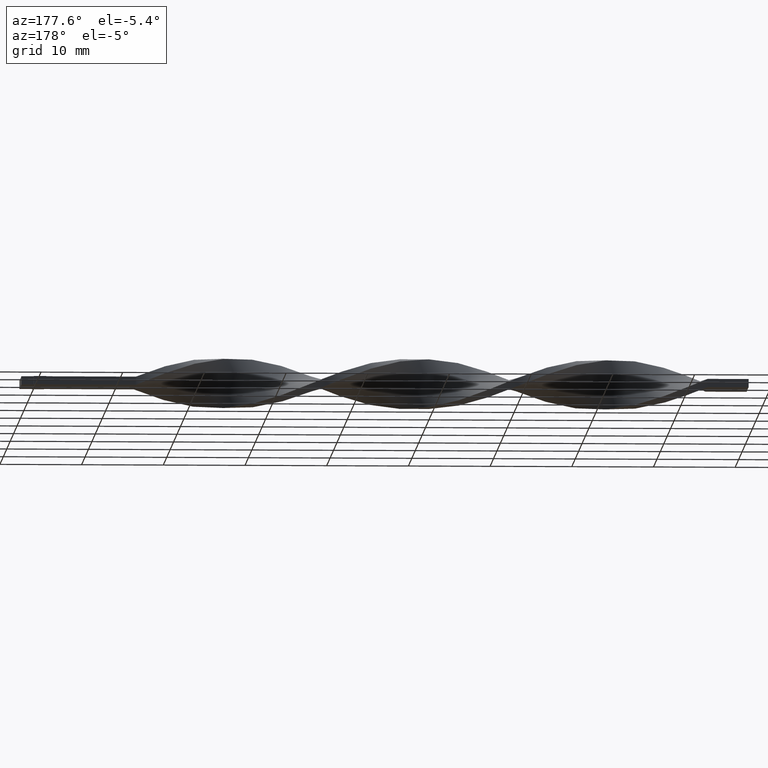
[diagram: clean part render]
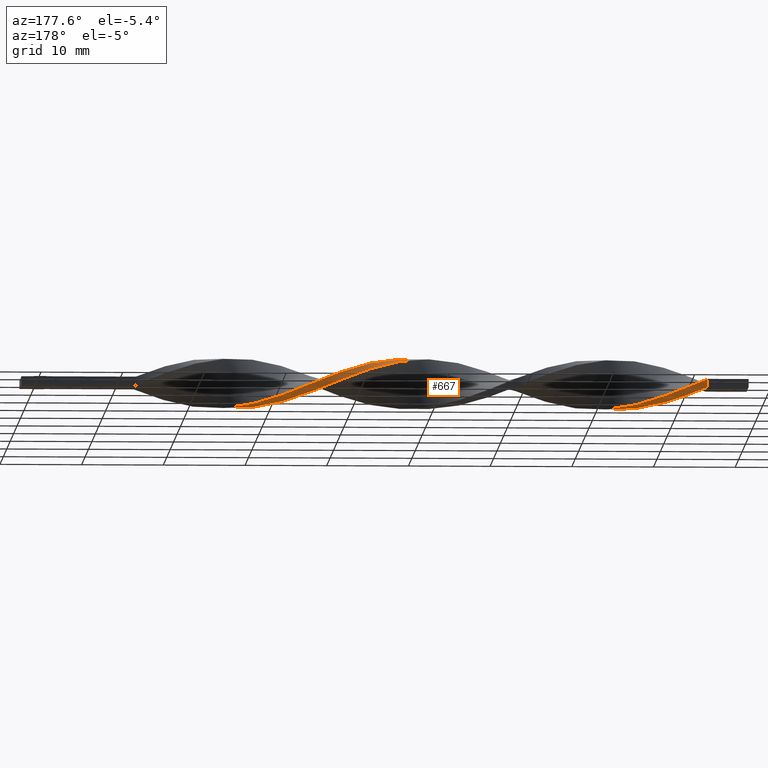
[diagram: same view with one face highlighted and labeled with its STEP entity id]
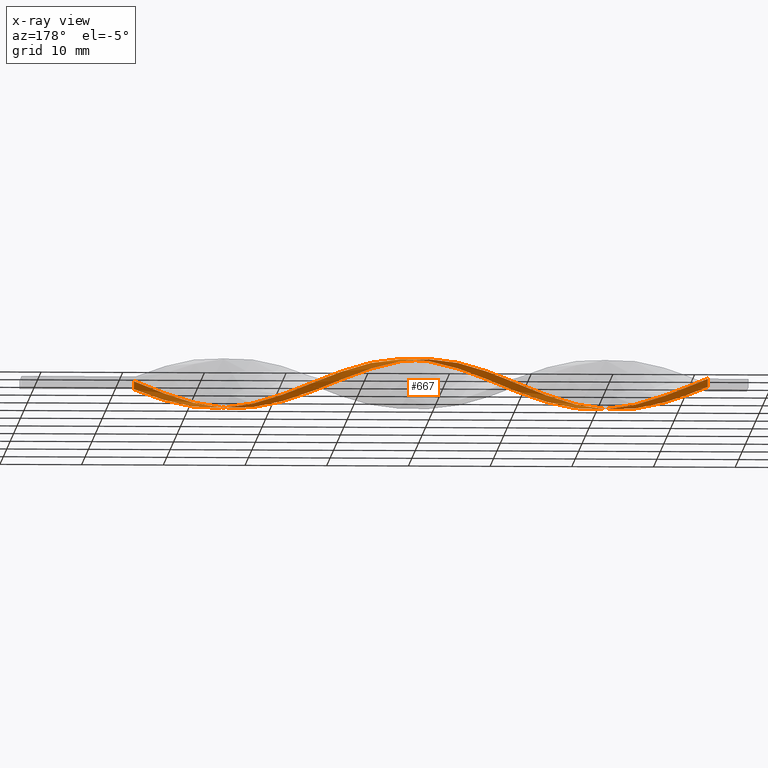
[diagram: x-ray of the same camera — body ghosted, the highlighted face saturated]
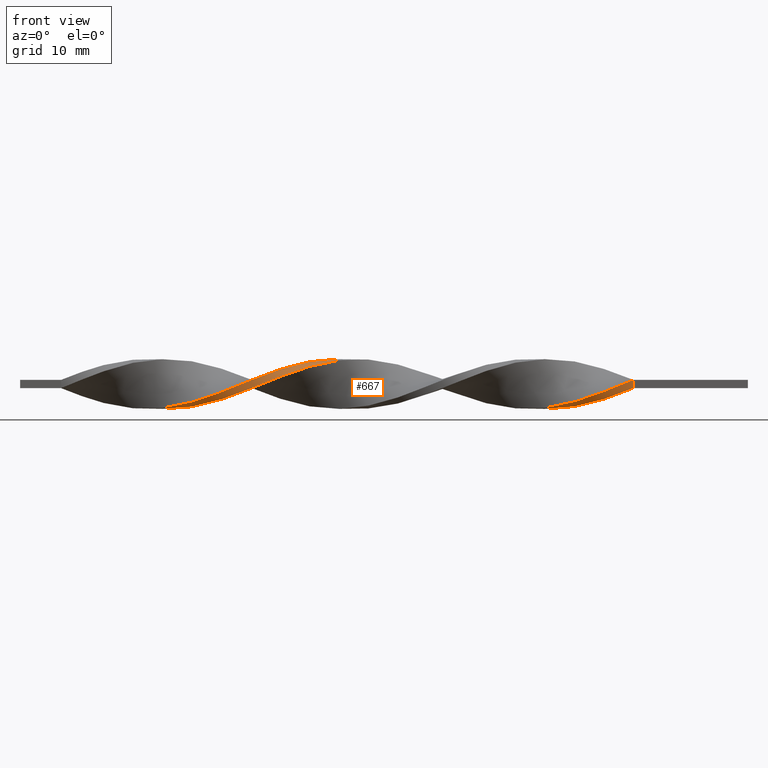
[diagram: same view with one face highlighted and labeled with its STEP entity id]
A machine part, auxiliary view. The second image highlights one B-rep face of the part: STEP entity #667.
The next image is the same camera in x-ray: the body ghosted, the highlighted face saturated — about 0% of this face is hidden behind the body in this view.
A second angle (front view) of the same face is appended — the face is thin or edge-on in the first view.
In plain terms, the highlighted face is a freeform B-spline surface patch.
Its self-contained STEP definition (entity closure, byte-faithful):
#5 = CARTESIAN_POINT ( 'NONE',  ( -68.74358974358973740, -0.9584295337030730444, -2.909946448908425243 ) ) ;
#12 = VECTOR ( 'NONE', #1029, 1000.000000000000000 ) ;
#13 = CARTESIAN_POINT ( 'NONE',  ( -61.56410256410256920, -2.939289008388868751, -0.8642659496667816077 ) ) ;
#19 = FACE_OUTER_BOUND ( 'NONE', #218, .T. ) ;
#20 = CARTESIAN_POINT ( 'NONE',  ( -66.05128205128204399, -2.577093573633700174, -1.615112600636833928 ) ) ;
#22 = CARTESIAN_POINT ( 'NONE',  ( -66.94871794871795601, -1.626975080790205030, -2.596021493184667683 ) ) ;
#27 = CARTESIAN_POINT ( 'NONE',  ( -77.71794871794872961, 2.380983398537112272, -1.928028413296781984 ) ) ;
#28 = CARTESIAN_POINT ( 'NONE',  ( -74.12820512820510999, 0.2341835458667254066, -3.054755894246597769 ) ) ;
#29 = CARTESIAN_POINT ( 'NONE',  ( -59.76923076923076650, -3.060710991611129916, -0.1357340503332168102 ) ) ;
#35 = CARTESIAN_POINT ( 'NONE',  ( -81.30769230769232081, 2.647046231879883305, -1.542569853484617504 ) ) ;
#36 = CARTESIAN_POINT ( 'NONE',  ( -76.82051282051281760, 2.115686173140294724, -2.184919224315390540 ) ) ;
#44 = EDGE_CURVE ( 'NONE', #124, #853, #194, .T. ) ;
#45 = CARTESIAN_POINT ( 'NONE',  ( -58.87179487179486870, -3.032483284421933600, 0.2324760841496498753 ) ) ;
#53 = CARTESIAN_POINT ( 'NONE',  ( -15.79487179487179205, -3.032483284421934044, -0.2324760841496470720 ) ) ;
#57 = CARTESIAN_POINT ( 'NONE',  ( -19.38461538461538325, -1.913970915392905425, -2.363623348807935454 ) ) ;
#61 = CARTESIAN_POINT ( 'NONE',  ( -68.74358974358973740, -1.850388947743477397, -2.441810035334000428 ) ) ;
#71 = CARTESIAN_POINT ( 'NONE',  ( -52.58974358974358410, -0.9584295337030710460, 2.909946448908425243 ) ) ;
#75 = ORIENTED_EDGE ( 'NONE', *, *, #163, .F. ) ;
#81 = CARTESIAN_POINT ( 'NONE',  ( -38.23076923076922640, 3.060710991611129472, -0.1357340503332191695 ) ) ;
#86 = CARTESIAN_POINT ( 'NONE',  ( -16.69230769230769340, -2.647046231879884193, -1.542569853484616615 ) ) ;
#89 = CARTESIAN_POINT ( 'NONE',  ( -33.74358974358974450, 2.424006490937744562, -1.836897528957910586 ) ) ;
#93 = CARTESIAN_POINT ( 'NONE',  ( -44.51282051282051100, 1.292702307246639037, 2.752983971046546685 ) ) ;
#97 = CARTESIAN_POINT ( 'NONE',  ( -31.94871794871794535, 1.913970915392904315, -2.363623348807935898 ) ) ;
#102 = CARTESIAN_POINT ( 'NONE',  ( -48.10256410256410220, 0.8579644778149976281, 2.917858282166499340 ) ) ;
#105 = CARTESIAN_POINT ( 'NONE',  ( -53.48717948717948900, -2.115686173140294724, 2.184919224315391428 ) ) ;
#111 = CARTESIAN_POINT ( 'NONE',  ( -24.76923076923076650, -0.8579644778149966289, -2.917858282166499340 ) ) ;
#112 = CARTESIAN_POINT ( 'NONE',  ( -45.41025641025640880, 0.9584295337030748207, 2.909946448908423910 ) ) ;
#118 = CARTESIAN_POINT ( 'NONE',  ( -22.97435897435897090, -1.531322782470314392, -2.627746284534975718 ) ) ;
#124 = VERTEX_POINT ( 'NONE', #634 ) ;
#129 = CARTESIAN_POINT ( 'NONE',  ( -19.38461538461538325, -2.577093573633700174, -1.615112600636833928 ) ) ;
#131 = CARTESIAN_POINT ( 'NONE',  ( -66.05128205128204399, -1.913970915392905425, -2.363623348807935454 ) ) ;
#143 = CARTESIAN_POINT ( 'NONE',  ( -41.82051282051281760, 2.200966749995605820, 2.131225204431203224 ) ) ;
#145 = CARTESIAN_POINT ( 'NONE',  ( -68.74358974358973740, -1.850388947743477619, -2.441810035334000428 ) ) ;
#151 = CARTESIAN_POINT ( 'NONE',  ( -58.87179487179486870, -2.793167620134375362, 1.203417901575701610 ) ) ;
#157 = CARTESIAN_POINT ( 'NONE',  ( -76.82051282051281760, 2.115686173140294724, -2.184919224315390540 ) ) ;
#159 = CARTESIAN_POINT ( 'NONE',  ( -75.02564102564102200, 1.531322782470313726, -2.627746284534976162 ) ) ;
#163 = EDGE_CURVE ( 'NONE', #124, #936, #1147, .T. ) ;
#166 = CARTESIAN_POINT ( 'NONE',  ( -64.25641025641024839, -2.424006490937744562, -1.836897528957910142 ) ) ;
#173 = CARTESIAN_POINT ( 'NONE',  ( -20.28205128205128460, -2.380983398537113160, -1.928028413296780874 ) ) ;
#179 = CARTESIAN_POINT ( 'NONE',  ( -84.00000000000000000, 2.999999999999999112, 0.4999999999999996669 ) ) ;
#194 =( BOUNDED_CURVE ( )  B_SPLINE_CURVE ( 2, ( #620, #1085, #1237, #1346, #747, #1617, #129, #497, #1365, #1491, #118, #370, #111, #1498, #365, #492, #1586, #1218, #1371, #467, #474, #993, #1119, #244, #872, #1376, #962, #359, #1474, #226, #341, #841, #860, #603, #216, #1100, #234, #711, #102, #597, #734, #1111, #1093, #970, #1483, #349, #851, #723, #1410, #509, #151, #902, #274, #391, #1508, #1000, #762, #523, #20, #880, #1127, #145, #258, #1006, #1384, #375, #909, #28, #1393, #1401, #778, #753, #530, #1279, #771, #35, #503, #265, #1258 ),
 .UNSPECIFIED., .F., .T. ) 
 B_SPLINE_CURVE_WITH_KNOTS ( ( 3, 2, 2, 2, 2, 2, 2, 2, 2, 2, 2, 2, 2, 2, 2, 2, 2, 2, 2, 2, 2, 2, 2, 2, 2, 2, 2, 2, 2, 2, 2, 2, 2, 2, 2, 2, 2, 2, 2, 3 ),
 ( 0.000000000000000000, 0.01923076923076923184, 0.03846153846153846367, 0.05769230769230768857, 0.07692307692307692735, 0.09615384615384615918, 0.1153846153846153771, 0.1346153846153846090, 0.1538461538461538547, 0.1730769230769230449, 0.1923076923076923184, 0.2115384615384615363, 0.2307692307692307543, 0.2500000000000000000, 0.2692307692307692180, 0.2884615384615384359, 0.3076923076923077094, 0.3269230769230769273, 0.3461538461538460898, 0.3653846153846153633, 0.3846153846153846367, 0.4038461538461539102, 0.4230769230769230727, 0.4423076923076922906, 0.4615384615384615086, 0.4807692307692307820, 0.5000000000000000000, 0.5192307692307692735, 0.5384615384615384359, 0.5576923076923077094, 0.5769230769230768718, 0.5961538461538461453, 0.6153846153846154188, 0.6346153846153845812, 0.6538461538461538547, 0.6730769230769230171, 0.6923076923076921796, 0.7115384615384615641, 0.7307692307692307265, 0.7500000000000000000 ),
 .UNSPECIFIED. ) 
 CURVE ( )  GEOMETRIC_REPRESENTATION_ITEM ( )  RATIONAL_B_SPLINE_CURVE ( ( 1.000000000000000000, 0.9927088740980539727, 1.000000000000000000, 0.9927088740980539727, 1.000000000000000000, 0.9927088740980539727, 1.000000000000000000, 0.9927088740980539727, 1.000000000000000000, 0.9927088740980539727, 1.000000000000000000, 0.9927088740980539727, 1.000000000000000000, 0.9927088740980539727, 1.000000000000000000, 0.9927088740980539727, 1.000000000000000000, 0.9927088740980539727, 1.000000000000000000, 0.9927088740980539727, 1.000000000000000000, 0.9927088740980539727, 1.000000000000000000, 0.9927088740980539727, 1.000000000000000000, 0.9927088740980539727, 1.000000000000000000, 0.9927088740980539727, 1.000000000000000000, 0.9927088740980539727, 1.000000000000000000, 0.9927088740980539727, 1.000000000000000000, 0.9927088740980539727, 1.000000000000000000, 0.9927088740980539727, 1.000000000000000000, 0.9927088740980539727, 1.000000000000000000, 0.9927088740980539727, 1.000000000000000000, 0.9927088740980539727, 1.000000000000000000, 0.9927088740980539727, 1.000000000000000000, 0.9927088740980539727, 1.000000000000000000, 0.9927088740980539727, 1.000000000000000000, 0.9927088740980539727, 1.000000000000000000, 0.9927088740980539727, 1.000000000000000000, 0.9927088740980539727, 1.000000000000000000, 0.9927088740980539727, 1.000000000000000000, 0.9927088740980539727, 1.000000000000000000, 0.9927088740980539727, 1.000000000000000000, 0.9927088740980539727, 1.000000000000000000, 0.9927088740980539727, 1.000000000000000000, 0.9927088740980539727, 1.000000000000000000, 0.9927088740980539727, 1.000000000000000000, 0.9927088740980539727, 1.000000000000000000, 0.9927088740980539727, 1.000000000000000000, 0.9927088740980539727, 1.000000000000000000, 0.9927088740980539727, 1.000000000000000000, 0.9927088740980539727, 1.000000000000000000 ) ) 
 REPRESENTATION_ITEM ( '' )  );
#198 = CARTESIAN_POINT ( 'NONE',  ( -78.61538461538461320, 1.913970915392904315, -2.363623348807935898 ) ) ;
#205 = CARTESIAN_POINT ( 'NONE',  ( -70.53846153846153300, -1.212256617197150943, -2.813682533735952340 ) ) ;
#208 = CARTESIAN_POINT ( 'NONE',  ( -38.23076923076922640, 2.939289008388868751, 0.8642659496667810526 ) ) ;
#209 = CARTESIAN_POINT ( 'NONE',  ( -29.25641025641025905, 1.850388947743477397, -2.441810035334000428 ) ) ;
#214 = CARTESIAN_POINT ( 'NONE',  ( -71.43589743589743080, -0.8579644778149966289, -2.917858282166499340 ) ) ;
#216 = CARTESIAN_POINT ( 'NONE',  ( -44.51282051282051100, 2.115686173140295168, 2.184919224315390540 ) ) ;
#217 = CARTESIAN_POINT ( 'NONE',  ( -84.00000000000000000, 2.999999999999999112, -0.5000000000000003331 ) ) ;
#218 = EDGE_LOOP ( 'NONE', ( #75, #786, #1016, #1024 ) ) ;
#222 = CARTESIAN_POINT ( 'NONE',  ( -63.35897435897435770, -3.004255577232739061, -0.6006862186325124808 ) ) ;
#226 = CARTESIAN_POINT ( 'NONE',  ( -40.02564102564102200, 3.004255577232739505, 0.6006862186325113706 ) ) ;
#227 = CARTESIAN_POINT ( 'NONE',  ( -29.25641025641025905, 1.850388947743477175, -2.441810035334000428 ) ) ;
#228 = CARTESIAN_POINT ( 'NONE',  ( -42.71794871794872250, 1.913970915392905869, 2.363623348807935454 ) ) ;
#234 = CARTESIAN_POINT ( 'NONE',  ( -46.30769230769230660, 1.531322782470314836, 2.627746284534975718 ) ) ;
#235 = CARTESIAN_POINT ( 'NONE',  ( -46.30769230769230660, 0.5963065397849001137, 2.982351171577511284 ) ) ;
#244 = CARTESIAN_POINT ( 'NONE',  ( -34.64102564102564230, 2.647046231879883305, -1.542569853484617504 ) ) ;
#257 = CARTESIAN_POINT ( 'NONE',  ( -48.10256410256410220, -0.1347443962830564002, 3.038394962421822942 ) ) ;
#258 = CARTESIAN_POINT ( 'NONE',  ( -69.64102564102564941, -1.531322782470314392, -2.627746284534975718 ) ) ;
#264 = CARTESIAN_POINT ( 'NONE',  ( -17.58974358974358765, -2.888729662981512902, -0.9514415033047003423 ) ) ;
#265 = CARTESIAN_POINT ( 'NONE',  ( -83.10256410256410220, 2.939289008388868751, -0.8642659496667828289 ) ) ;
#273 = CARTESIAN_POINT ( 'NONE',  ( -30.15384615384615330, 1.292702307246638371, -2.752983971046546685 ) ) ;
#274 = CARTESIAN_POINT ( 'NONE',  ( -60.66666666666666430, -2.999999999999999112, 0.5000000000000000000 ) ) ;
#276 = CARTESIAN_POINT ( 'NONE',  ( -72.33333333333332860, 0.5036723384328412045, -3.022034030597047671 ) ) ;
#282 = CARTESIAN_POINT ( 'NONE',  ( -69.64102564102564941, -0.5963065397848997806, -2.982351171577511284 ) ) ;
#291 = CARTESIAN_POINT ( 'NONE',  ( -26.56410256410256210, -0.1347443962830584541, -3.038394962421822498 ) ) ;
#302 = CARTESIAN_POINT ( 'NONE',  ( -54.38461538461538680, -2.380983398537111384, 1.928028413296783095 ) ) ;
#307 = CARTESIAN_POINT ( 'NONE',  ( -33.74358974358974450, 2.888729662981512902, -0.9514415033047007864 ) ) ;
#308 =( BOUNDED_SURFACE ( )  B_SPLINE_SURFACE ( 1, 2, ( 
 ( #867, #612, #484, #1392, #835, #605, #1087, #493, #1357, #1348, #981, #1476, #713, #1587, #468, #989, #1094, #227, #1366, #1221, #725, #1231, #1613, #342, #1467, #1337, #475, #208, #843, #705, #1112, #143, #1211, #1484, #93, #112, #235, #335, #257, #590, #1263, #761, #640, #1172, #795, #302, #1046, #901, #546, #1400, #45, #769, #410, #803, #1295, #908, #166, #1180, #1417, #918, #1268, #1547, #282, #537, #646, #1408, #419, #1146, #427, #1278, #157, #27, #1155, #784, #1539, #1303, #926, #1035, #179 ),
 ( #1436, #522, #53, #1165, #264, #668, #651, #173, #513, #1286, #1021, #893, #1014, #1426, #291, #390, #1524, #399, #273, #777, #97, #934, #89, #312, #576, #345, #839, #81, #1332, #719, #1074, #465, #812, #595, #1573, #1082, #1313, #446, #1583, #1190, #1591, #821, #1322, #71, #692, #453, #957, #1480, #1090, #1471, #847, #471, #1343, #968, #1462, #222, #322, #1352, #338, #331, #1200, #61, #831, #205, #214, #567, #709, #702, #558, #1215, #1056, #1556, #198, #437, #1444, #1066, #1566, #941, #1451 ) ),
 .UNSPECIFIED., .F., .F., .F. ) 
 B_SPLINE_SURFACE_WITH_KNOTS ( ( 2, 2 ),
 ( 3, 2, 2, 2, 2, 2, 2, 2, 2, 2, 2, 2, 2, 2, 2, 2, 2, 2, 2, 2, 2, 2, 2, 2, 2, 2, 2, 2, 2, 2, 2, 2, 2, 2, 2, 2, 2, 2, 2, 3 ),
 ( 0.000000000000000000, 1.000000000000000000 ),
 ( 0.000000000000000000, 0.01923076923076923184, 0.03846153846153846367, 0.05769230769230769551, 0.07692307692307692735, 0.09615384615384615918, 0.1153846153846153910, 0.1346153846153846090, 0.1538461538461538547, 0.1730769230769230727, 0.1923076923076923184, 0.2115384615384615363, 0.2307692307692307820, 0.2500000000000000000, 0.2692307692307692180, 0.2884615384615384359, 0.3076923076923077094, 0.3269230769230769273, 0.3461538461538461453, 0.3653846153846153633, 0.3846153846153846367, 0.4038461538461538547, 0.4230769230769230727, 0.4423076923076922906, 0.4615384615384615641, 0.4807692307692307820, 0.5000000000000000000, 0.5192307692307692735, 0.5384615384615384359, 0.5576923076923077094, 0.5769230769230768718, 0.5961538461538461453, 0.6153846153846154188, 0.6346153846153845812, 0.6538461538461538547, 0.6730769230769231282, 0.6923076923076922906, 0.7115384615384615641, 0.7307692307692307265, 0.7500000000000000000 ),
 .UNSPECIFIED. ) 
 GEOMETRIC_REPRESENTATION_ITEM ( )  RATIONAL_B_SPLINE_SURFACE ( (
 ( 1.000000000000000000, 0.9927088740980539727, 1.000000000000000000, 0.9927088740980539727, 1.000000000000000000, 0.9927088740980539727, 1.000000000000000000, 0.9927088740980539727, 1.000000000000000000, 0.9927088740980539727, 1.000000000000000000, 0.9927088740980539727, 1.000000000000000000, 0.9927088740980539727, 1.000000000000000000, 0.9927088740980539727, 1.000000000000000000, 0.9927088740980539727, 1.000000000000000000, 0.9927088740980539727, 1.000000000000000000, 0.9927088740980539727, 1.000000000000000000, 0.9927088740980539727, 1.000000000000000000, 0.9927088740980539727, 1.000000000000000000, 0.9927088740980539727, 1.000000000000000000, 0.9927088740980539727, 1.000000000000000000, 0.9927088740980539727, 1.000000000000000000, 0.9927088740980539727, 1.000000000000000000, 0.9927088740980539727, 1.000000000000000000, 0.9927088740980539727, 1.000000000000000000, 0.9927088740980539727, 1.000000000000000000, 0.9927088740980539727, 1.000000000000000000, 0.9927088740980539727, 1.000000000000000000, 0.9927088740980539727, 1.000000000000000000, 0.9927088740980539727, 1.000000000000000000, 0.9927088740980539727, 1.000000000000000000, 0.9927088740980539727, 1.000000000000000000, 0.9927088740980539727, 1.000000000000000000, 0.9927088740980539727, 1.000000000000000000, 0.9927088740980539727, 1.000000000000000000, 0.9927088740980539727, 1.000000000000000000, 0.9927088740980539727, 1.000000000000000000, 0.9927088740980539727, 1.000000000000000000, 0.9927088740980539727, 1.000000000000000000, 0.9927088740980539727, 1.000000000000000000, 0.9927088740980539727, 1.000000000000000000, 0.9927088740980539727, 1.000000000000000000, 0.9927088740980539727, 1.000000000000000000, 0.9927088740980539727, 1.000000000000000000, 0.9927088740980539727, 1.000000000000000000),
 ( 1.000000000000000000, 0.9927088740980539727, 1.000000000000000000, 0.9927088740980539727, 1.000000000000000000, 0.9927088740980539727, 1.000000000000000000, 0.9927088740980539727, 1.000000000000000000, 0.9927088740980539727, 1.000000000000000000, 0.9927088740980539727, 1.000000000000000000, 0.9927088740980539727, 1.000000000000000000, 0.9927088740980539727, 1.000000000000000000, 0.9927088740980539727, 1.000000000000000000, 0.9927088740980539727, 1.000000000000000000, 0.9927088740980539727, 1.000000000000000000, 0.9927088740980539727, 1.000000000000000000, 0.9927088740980539727, 1.000000000000000000, 0.9927088740980539727, 1.000000000000000000, 0.9927088740980539727, 1.000000000000000000, 0.9927088740980539727, 1.000000000000000000, 0.9927088740980539727, 1.000000000000000000, 0.9927088740980539727, 1.000000000000000000, 0.9927088740980539727, 1.000000000000000000, 0.9927088740980539727, 1.000000000000000000, 0.9927088740980539727, 1.000000000000000000, 0.9927088740980539727, 1.000000000000000000, 0.9927088740980539727, 1.000000000000000000, 0.9927088740980539727, 1.000000000000000000, 0.9927088740980539727, 1.000000000000000000, 0.9927088740980539727, 1.000000000000000000, 0.9927088740980539727, 1.000000000000000000, 0.9927088740980539727, 1.000000000000000000, 0.9927088740980539727, 1.000000000000000000, 0.9927088740980539727, 1.000000000000000000, 0.9927088740980539727, 1.000000000000000000, 0.9927088740980539727, 1.000000000000000000, 0.9927088740980539727, 1.000000000000000000, 0.9927088740980539727, 1.000000000000000000, 0.9927088740980539727, 1.000000000000000000, 0.9927088740980539727, 1.000000000000000000, 0.9927088740980539727, 1.000000000000000000, 0.9927088740980539727, 1.000000000000000000, 0.9927088740980539727, 1.000000000000000000) ) ) 
 REPRESENTATION_ITEM ( '' )  SURFACE ( )  );
#312 = CARTESIAN_POINT ( 'NONE',  ( -34.64102564102564230, 2.647046231879883305, -1.542569853484617726 ) ) ;
#317 = CARTESIAN_POINT ( 'NONE',  ( -17.58974358974358765, -2.424006490937744562, -1.836897528957910142 ) ) ;
#322 = CARTESIAN_POINT ( 'NONE',  ( -64.25641025641024839, -2.888729662981512902, -0.9514415033047003423 ) ) ;
#331 = CARTESIAN_POINT ( 'NONE',  ( -66.94871794871794179, -2.380983398537113160, -1.928028413296780874 ) ) ;
#335 = CARTESIAN_POINT ( 'NONE',  ( -47.20512820512820440, 0.2341835458667255176, 3.054755894246597769 ) ) ;
#338 = CARTESIAN_POINT ( 'NONE',  ( -66.05128205128204399, -2.577093573633700174, -1.615112600636833928 ) ) ;
#341 = CARTESIAN_POINT ( 'NONE',  ( -40.92307692307691980, 2.888729662981512902, 0.9514415033047001202 ) ) ;
#342 = CARTESIAN_POINT ( 'NONE',  ( -34.64102564102564230, 3.004255577232739061, -0.6006862186325132580 ) ) ;
#345 = CARTESIAN_POINT ( 'NONE',  ( -36.43589743589743790, 2.939289008388868751, -0.8642659496667827179 ) ) ;
#349 = CARTESIAN_POINT ( 'NONE',  ( -54.38461538461538680, -1.626975080790202366, 2.596021493184669016 ) ) ;
#350 = CARTESIAN_POINT ( 'NONE',  ( -84.00000000000000000, 2.999999999999999112, 0.1666666666666663521 ) ) ;
#359 = CARTESIAN_POINT ( 'NONE',  ( -38.23076923076922640, 3.060710991611129472, -0.1357340503332191972 ) ) ;
#365 = CARTESIAN_POINT ( 'NONE',  ( -26.56410256410256210, -0.1347443962830584541, -3.038394962421822498 ) ) ;
#370 = CARTESIAN_POINT ( 'NONE',  ( -23.87179487179487580, -1.212256617197150943, -2.813682533735952340 ) ) ;
#375 = CARTESIAN_POINT ( 'NONE',  ( -72.33333333333332860, -0.5036723384328416486, -3.022034030597047671 ) ) ;
#376 = CARTESIAN_POINT ( 'NONE',  ( -79.51282051282051100, 2.773203748730287632, -1.302196787976888093 ) ) ;
#390 = CARTESIAN_POINT ( 'NONE',  ( -27.46153846153846345, 0.2341835458667254066, -3.054755894246597769 ) ) ;
#391 = CARTESIAN_POINT ( 'NONE',  ( -61.56410256410256920, -3.060710991611129472, 0.1357340503332185033 ) ) ;
#399 = CARTESIAN_POINT ( 'NONE',  ( -29.25641025641025905, 0.9584295337030727113, -2.909946448908424799 ) ) ;
#404 = CARTESIAN_POINT ( 'NONE',  ( -82.20512820512820440, 3.032483284421934044, -0.2324760841496482100 ) ) ;
#410 = CARTESIAN_POINT ( 'NONE',  ( -60.66666666666666430, -2.999999999999999112, -0.5000000000000000000 ) ) ;
#413 = CARTESIAN_POINT ( 'NONE',  ( -65.15384615384614619, -2.200966749995605376, -2.131225204431203224 ) ) ;
#419 = CARTESIAN_POINT ( 'NONE',  ( -73.23076923076924061, 0.8579644778149956297, -2.917858282166499784 ) ) ;
#427 = CARTESIAN_POINT ( 'NONE',  ( -75.02564102564102200, 1.531322782470313726, -2.627746284534976162 ) ) ;
#432 = CARTESIAN_POINT ( 'NONE',  ( -13.99999999999999822, -2.999999999999999112, -0.5000000000000000000 ) ) ;
#437 = CARTESIAN_POINT ( 'NONE',  ( -79.51282051282051100, 2.200966749995605376, -2.131225204431203668 ) ) ;
#443 = CARTESIAN_POINT ( 'NONE',  ( -31.94871794871794535, 2.577093573633699730, -1.615112600636835261 ) ) ;
#446 = CARTESIAN_POINT ( 'NONE',  ( -47.20512820512820440, 1.212256617197150721, 2.813682533735952340 ) ) ;
#453 = CARTESIAN_POINT ( 'NONE',  ( -54.38461538461538680, -1.626975080790202366, 2.596021493184669016 ) ) ;
#459 = CARTESIAN_POINT ( 'NONE',  ( -27.46153846153846345, 1.212256617197150721, -2.813682533735952340 ) ) ;
#465 = CARTESIAN_POINT ( 'NONE',  ( -41.82051282051281760, 2.773203748730288076, 1.302196787976887205 ) ) ;
#467 = CARTESIAN_POINT ( 'NONE',  ( -31.05128205128205465, 1.626975080790203920, -2.596021493184668572 ) ) ;
#468 = CARTESIAN_POINT ( 'NONE',  ( -26.56410256410256210, 0.8579644778149956297, -2.917858282166499784 ) ) ;
#471 = CARTESIAN_POINT ( 'NONE',  ( -59.76923076923077360, -2.939289008388868307, 0.8642659496667831620 ) ) ;
#474 = CARTESIAN_POINT ( 'NONE',  ( -31.94871794871794535, 1.913970915392904315, -2.363623348807935898 ) ) ;
#475 = CARTESIAN_POINT ( 'NONE',  ( -37.33333333333332860, 2.999999999999999112, 0.4999999999999996669 ) ) ;
#484 = CARTESIAN_POINT ( 'NONE',  ( -15.79487179487179205, -2.793167620134376694, -1.203417901575699167 ) ) ;
#492 = CARTESIAN_POINT ( 'NONE',  ( -27.46153846153846345, 0.2341835458667254066, -3.054755894246597769 ) ) ;
#493 = CARTESIAN_POINT ( 'NONE',  ( -20.28205128205128460, -1.626975080790204808, -2.596021493184667683 ) ) ;
#497 = CARTESIAN_POINT ( 'NONE',  ( -20.28205128205128460, -2.380983398537113160, -1.928028413296780874 ) ) ;
#498 = CARTESIAN_POINT ( 'NONE',  ( -40.92307692307691980, 2.424006490937744562, 1.836897528957909920 ) ) ;
#503 = CARTESIAN_POINT ( 'NONE',  ( -82.20512820512820440, 2.793167620134375806, -1.203417901575700055 ) ) ;
#505 = CARTESIAN_POINT ( 'NONE',  ( -77.71794871794874382, 2.380983398537112272, -1.928028413296781984 ) ) ;
#509 = CARTESIAN_POINT ( 'NONE',  ( -57.97435897435897090, -2.647046231879883305, 1.542569853484617948 ) ) ;
#511 = CARTESIAN_POINT ( 'NONE',  ( -13.99999999999999822, -2.999999999999999112, -0.5000000000000000000 ) ) ;
#513 = CARTESIAN_POINT ( 'NONE',  ( -21.17948717948717885, -2.115686173140295168, -2.184919224315390540 ) ) ;
#515 = CARTESIAN_POINT ( 'NONE',  ( -80.41025641025640880, 2.888729662981512902, -0.9514415033047007864 ) ) ;
#522 = CARTESIAN_POINT ( 'NONE',  ( -14.89743589743589602, -3.060710991611129472, 0.1357340503332185311 ) ) ;
#523 = CARTESIAN_POINT ( 'NONE',  ( -65.15384615384614619, -2.773203748730287632, -1.302196787976887871 ) ) ;
#530 = CARTESIAN_POINT ( 'NONE',  ( -78.61538461538461320, 1.913970915392904315, -2.363623348807935898 ) ) ;
#537 = CARTESIAN_POINT ( 'NONE',  ( -70.53846153846153300, -0.2341835458667257397, -3.054755894246597769 ) ) ;
#543 = CARTESIAN_POINT ( 'NONE',  ( -39.12820512820512420, 2.793167620134376694, 1.203417901575698279 ) ) ;
#546 = CARTESIAN_POINT ( 'NONE',  ( -57.07692307692307310, -2.888729662981512458, 0.9514415033047024517 ) ) ;
#554 = CARTESIAN_POINT ( 'NONE',  ( -22.97435897435897090, -0.5963065397848997806, -2.982351171577511284 ) ) ;
#558 = CARTESIAN_POINT ( 'NONE',  ( -75.02564102564102200, 0.5963065397848987814, -2.982351171577511728 ) ) ;
#564 = CARTESIAN_POINT ( 'NONE',  ( -20.28205128205128460, -1.626975080790205030, -2.596021493184667683 ) ) ;
#567 = CARTESIAN_POINT ( 'NONE',  ( -72.33333333333332860, -0.5036723384328416486, -3.022034030597047671 ) ) ;
#576 = CARTESIAN_POINT ( 'NONE',  ( -35.53846153846153300, 2.793167620134375806, -1.203417901575700055 ) ) ;
#581 = CARTESIAN_POINT ( 'NONE',  ( -21.17948717948717885, -1.292702307246639037, -2.752983971046546685 ) ) ;
#590 = CARTESIAN_POINT ( 'NONE',  ( -49.00000000000000711, -0.5036723384328408715, 3.022034030597047671 ) ) ;
#595 = CARTESIAN_POINT ( 'NONE',  ( -43.61538461538461320, 2.380983398537113604, 1.928028413296780430 ) ) ;
#597 = CARTESIAN_POINT ( 'NONE',  ( -49.00000000000000000, 0.5036723384328419817, 3.022034030597047671 ) ) ;
#598 = CARTESIAN_POINT ( 'NONE',  ( -84.00000000000000000, 2.999999999999999112, 0.4999999999999996669 ) ) ;
#603 = CARTESIAN_POINT ( 'NONE',  ( -43.61538461538461320, 2.380983398537114049, 1.928028413296780430 ) ) ;
#605 = CARTESIAN_POINT ( 'NONE',  ( -18.48717948717948545, -2.200966749995605376, -2.131225204431203224 ) ) ;
#612 = CARTESIAN_POINT ( 'NONE',  ( -14.89743589743589602, -2.939289008388868751, -0.8642659496667817187 ) ) ;
#620 = CARTESIAN_POINT ( 'NONE',  ( -13.99999999999999822, -2.999999999999999112, 0.5000000000000000000 ) ) ;
#624 = EDGE_CURVE ( 'NONE', #661, #853, #1227, .T. ) ;
#628 = CARTESIAN_POINT ( 'NONE',  ( -69.64102564102564941, -0.5963065397848997806, -2.982351171577511284 ) ) ;
#634 = CARTESIAN_POINT ( 'NONE',  ( -13.99999999999999822, -2.999999999999999112, 0.5000000000000000000 ) ) ;
#640 = CARTESIAN_POINT ( 'NONE',  ( -51.69230769230769340, -1.531322782470313726, 2.627746284534976162 ) ) ;
#646 = CARTESIAN_POINT ( 'NONE',  ( -71.43589743589743080, 0.1347443962830574271, -3.038394962421822942 ) ) ;
#651 = CARTESIAN_POINT ( 'NONE',  ( -19.38461538461538325, -2.577093573633700174, -1.615112600636833928 ) ) ;
#653 = CARTESIAN_POINT ( 'NONE',  ( -57.07692307692307310, -2.888729662981512458, 0.9514415033047024517 ) ) ;
#661 = VERTEX_POINT ( 'NONE', #1494 ) ;
#667 = ADVANCED_FACE ( 'NONE', ( #19 ), #308, .T. ) ;
#668 = CARTESIAN_POINT ( 'NONE',  ( -18.48717948717948545, -2.773203748730287632, -1.302196787976887649 ) ) ;
#692 = CARTESIAN_POINT ( 'NONE',  ( -53.48717948717948900, -1.292702307246637927, 2.752983971046546685 ) ) ;
#702 = CARTESIAN_POINT ( 'NONE',  ( -74.12820512820512420, 0.2341835458667254066, -3.054755894246597769 ) ) ;
#705 = CARTESIAN_POINT ( 'NONE',  ( -40.02564102564102200, 2.647046231879884637, 1.542569853484615505 ) ) ;
#706 = CARTESIAN_POINT ( 'NONE',  ( -36.43589743589743790, 3.060710991611129472, 0.1357340503332171711 ) ) ;
#709 = CARTESIAN_POINT ( 'NONE',  ( -73.23076923076924061, -0.1347443962830584541, -3.038394962421822498 ) ) ;
#711 = CARTESIAN_POINT ( 'NONE',  ( -47.20512820512820440, 1.212256617197150721, 2.813682533735952340 ) ) ;
#713 = CARTESIAN_POINT ( 'NONE',  ( -24.76923076923076650, 0.1347443962830574271, -3.038394962421822942 ) ) ;
#714 = CARTESIAN_POINT ( 'NONE',  ( -46.30769230769230660, 0.5963065397849001137, 2.982351171577511284 ) ) ;
#719 = CARTESIAN_POINT ( 'NONE',  ( -40.02564102564102200, 3.004255577232739505, 0.6006862186325113706 ) ) ;
#723 = CARTESIAN_POINT ( 'NONE',  ( -56.17948717948717530, -2.200966749995605376, 2.131225204431204112 ) ) ;
#725 = CARTESIAN_POINT ( 'NONE',  ( -31.94871794871794535, 2.577093573633699730, -1.615112600636835261 ) ) ;
#726 = CARTESIAN_POINT ( 'NONE',  ( -44.51282051282051100, 1.292702307246639037, 2.752983971046546685 ) ) ;
#734 = CARTESIAN_POINT ( 'NONE',  ( -49.89743589743589069, 0.1347443962830601472, 3.038394962421822498 ) ) ;
#747 = CARTESIAN_POINT ( 'NONE',  ( -17.58974358974358765, -2.888729662981512902, -0.9514415033047003423 ) ) ;
#753 = CARTESIAN_POINT ( 'NONE',  ( -77.71794871794874382, 1.626975080790203920, -2.596021493184668572 ) ) ;
#761 = CARTESIAN_POINT ( 'NONE',  ( -50.79487179487178850, -1.212256617197149611, 2.813682533735953228 ) ) ;
#762 = CARTESIAN_POINT ( 'NONE',  ( -64.25641025641024839, -2.888729662981512902, -0.9514415033047003423 ) ) ;
#763 = CARTESIAN_POINT ( 'NONE',  ( -70.53846153846153300, -0.2341835458667257397, -3.054755894246597769 ) ) ;
#769 = CARTESIAN_POINT ( 'NONE',  ( -59.76923076923077360, -3.060710991611129916, -0.1357340503332168102 ) ) ;
#771 = CARTESIAN_POINT ( 'NONE',  ( -80.41025641025640880, 2.424006490937744562, -1.836897528957910586 ) ) ;
#772 = CARTESIAN_POINT ( 'NONE',  ( -78.61538461538461320, 2.577093573633699730, -1.615112600636835261 ) ) ;
#777 = CARTESIAN_POINT ( 'NONE',  ( -31.05128205128205821, 1.626975080790203920, -2.596021493184668572 ) ) ;
#778 = CARTESIAN_POINT ( 'NONE',  ( -76.82051282051281760, 1.292702307246638371, -2.752983971046546685 ) ) ;
#784 = CARTESIAN_POINT ( 'NONE',  ( -79.51282051282051100, 2.773203748730287632, -1.302196787976887871 ) ) ;
#786 = ORIENTED_EDGE ( 'NONE', *, *, #44, .T. ) ;
#795 = CARTESIAN_POINT ( 'NONE',  ( -53.48717948717948900, -2.115686173140294724, 2.184919224315391428 ) ) ;
#803 = CARTESIAN_POINT ( 'NONE',  ( -61.56410256410256920, -2.939289008388868751, -0.8642659496667817187 ) ) ;
#812 = CARTESIAN_POINT ( 'NONE',  ( -42.71794871794872250, 2.577093573633700618, 1.615112600636833928 ) ) ;
#818 = CARTESIAN_POINT ( 'NONE',  ( -40.02564102564102200, 2.647046231879884637, 1.542569853484615505 ) ) ;
#821 = CARTESIAN_POINT ( 'NONE',  ( -50.79487179487178850, -0.2341835458667242409, 3.054755894246597769 ) ) ;
#828 = CARTESIAN_POINT ( 'NONE',  ( -14.89743589743589602, -2.939289008388868751, -0.8642659496667816077 ) ) ;
#831 = CARTESIAN_POINT ( 'NONE',  ( -69.64102564102564941, -1.531322782470314392, -2.627746284534975718 ) ) ;
#835 = CARTESIAN_POINT ( 'NONE',  ( -17.58974358974358765, -2.424006490937744562, -1.836897528957910142 ) ) ;
#836 = CARTESIAN_POINT ( 'NONE',  ( -34.64102564102564230, 3.004255577232739061, -0.6006862186325134800 ) ) ;
#839 = CARTESIAN_POINT ( 'NONE',  ( -37.33333333333332860, 2.999999999999999112, -0.5000000000000003331 ) ) ;
#841 = CARTESIAN_POINT ( 'NONE',  ( -41.82051282051281760, 2.773203748730288076, 1.302196787976887205 ) ) ;
#843 = CARTESIAN_POINT ( 'NONE',  ( -39.12820512820512420, 2.793167620134376694, 1.203417901575698279 ) ) ;
#847 = CARTESIAN_POINT ( 'NONE',  ( -58.87179487179486870, -2.793167620134375362, 1.203417901575701610 ) ) ;
#851 = CARTESIAN_POINT ( 'NONE',  ( -55.28205128205128460, -1.913970915392903871, 2.363623348807935898 ) ) ;
#853 = VERTEX_POINT ( 'NONE', #1254 ) ;
#860 = CARTESIAN_POINT ( 'NONE',  ( -42.71794871794872250, 2.577093573633700618, 1.615112600636833928 ) ) ;
#867 = CARTESIAN_POINT ( 'NONE',  ( -13.99999999999999822, -2.999999999999999112, -0.5000000000000000000 ) ) ;
#868 = CARTESIAN_POINT ( 'NONE',  ( -49.89743589743589069, -0.8579644778149938533, 2.917858282166499784 ) ) ;
#872 = CARTESIAN_POINT ( 'NONE',  ( -35.53846153846153300, 2.793167620134375806, -1.203417901575700055 ) ) ;
#880 = CARTESIAN_POINT ( 'NONE',  ( -66.94871794871795601, -2.380983398537113160, -1.928028413296780874 ) ) ;
#881 = CARTESIAN_POINT ( 'NONE',  ( -81.30769230769232081, 3.004255577232739061, -0.6006862186325134800 ) ) ;
#886 = CARTESIAN_POINT ( 'NONE',  ( -60.66666666666666430, -2.999999999999999112, -0.5000000000000000000 ) ) ;
#893 = CARTESIAN_POINT ( 'NONE',  ( -23.87179487179487580, -1.212256617197150943, -2.813682533735952340 ) ) ;
#895 = CARTESIAN_POINT ( 'NONE',  ( -84.00000000000000000, 2.999999999999999112, 0.4999999999999996669 ) ) ;
#901 = CARTESIAN_POINT ( 'NONE',  ( -56.17948717948717530, -2.773203748730287632, 1.302196787976888315 ) ) ;
#902 = CARTESIAN_POINT ( 'NONE',  ( -59.76923076923076650, -2.939289008388868307, 0.8642659496667832730 ) ) ;
#908 = CARTESIAN_POINT ( 'NONE',  ( -63.35897435897435770, -2.647046231879884193, -1.542569853484616615 ) ) ;
#909 = CARTESIAN_POINT ( 'NONE',  ( -73.23076923076924061, -0.1347443962830584541, -3.038394962421822498 ) ) ;
#911 = CARTESIAN_POINT ( 'NONE',  ( -62.46153846153845990, -2.793167620134376694, -1.203417901575699167 ) ) ;
#918 = CARTESIAN_POINT ( 'NONE',  ( -66.94871794871794179, -1.626975080790204808, -2.596021493184667683 ) ) ;
#926 = CARTESIAN_POINT ( 'NONE',  ( -82.20512820512820440, 3.032483284421934044, -0.2324760841496482100 ) ) ;
#934 = CARTESIAN_POINT ( 'NONE',  ( -32.84615384615384670, 2.200966749995605376, -2.131225204431203668 ) ) ;
#936 = VERTEX_POINT ( 'NONE', #511 ) ;
#938 = CARTESIAN_POINT ( 'NONE',  ( -24.76923076923076650, 0.1347443962830574271, -3.038394962421822942 ) ) ;
#941 = CARTESIAN_POINT ( 'NONE',  ( -83.10256410256410220, 2.939289008388868751, -0.8642659496667827179 ) ) ;
#954 = CARTESIAN_POINT ( 'NONE',  ( -31.05128205128205465, 2.380983398537112272, -1.928028413296781984 ) ) ;
#957 = CARTESIAN_POINT ( 'NONE',  ( -55.28205128205128460, -1.913970915392903871, 2.363623348807935898 ) ) ;
#962 = CARTESIAN_POINT ( 'NONE',  ( -37.33333333333332860, 2.999999999999999112, -0.5000000000000003331 ) ) ;
#965 = CARTESIAN_POINT ( 'NONE',  ( -51.69230769230769340, -1.531322782470313726, 2.627746284534976162 ) ) ;
#968 = CARTESIAN_POINT ( 'NONE',  ( -61.56410256410256920, -3.060710991611129472, 0.1357340503332185311 ) ) ;
#970 = CARTESIAN_POINT ( 'NONE',  ( -52.58974358974359120, -0.9584295337030711570, 2.909946448908425687 ) ) ;
#981 = CARTESIAN_POINT ( 'NONE',  ( -22.97435897435897090, -0.5963065397848997806, -2.982351171577511284 ) ) ;
#989 = CARTESIAN_POINT ( 'NONE',  ( -27.46153846153846345, 1.212256617197150721, -2.813682533735952340 ) ) ;
#990 = CARTESIAN_POINT ( 'NONE',  ( -43.61538461538461320, 1.626975080790205919, 2.596021493184667239 ) ) ;
#993 = CARTESIAN_POINT ( 'NONE',  ( -32.84615384615384670, 2.200966749995605376, -2.131225204431203668 ) ) ;
#1000 = CARTESIAN_POINT ( 'NONE',  ( -63.35897435897436480, -3.004255577232739061, -0.6006862186325124808 ) ) ;
#1001 = CARTESIAN_POINT ( 'NONE',  ( -58.87179487179486870, -3.032483284421933600, 0.2324760841496498753 ) ) ;
#1006 = CARTESIAN_POINT ( 'NONE',  ( -70.53846153846153300, -1.212256617197150943, -2.813682533735952340 ) ) ;
#1007 = CARTESIAN_POINT ( 'NONE',  ( -75.92307692307691980, 1.850388947743477397, -2.441810035334000428 ) ) ;
#1014 = CARTESIAN_POINT ( 'NONE',  ( -24.76923076923076650, -0.8579644778149966289, -2.917858282166499340 ) ) ;
#1016 = ORIENTED_EDGE ( 'NONE', *, *, #624, .F. ) ;
#1021 = CARTESIAN_POINT ( 'NONE',  ( -22.97435897435897090, -1.531322782470314392, -2.627746284534975718 ) ) ;
#1023 = CARTESIAN_POINT ( 'NONE',  ( -57.97435897435897090, -3.004255577232739061, 0.6006862186325138131 ) ) ;
#1024 = ORIENTED_EDGE ( 'NONE', *, *, #1363, .F. ) ;
#1029 = DIRECTION ( 'NONE',  ( -0.000000000000000000, -0.000000000000000000, -1.000000000000000000 ) ) ;
#1035 = CARTESIAN_POINT ( 'NONE',  ( -83.10256410256410220, 3.060710991611129472, 0.1357340503332171988 ) ) ;
#1042 = CARTESIAN_POINT ( 'NONE',  ( -23.87179487179487580, -0.2341835458667257397, -3.054755894246597769 ) ) ;
#1046 = CARTESIAN_POINT ( 'NONE',  ( -55.28205128205128460, -2.577093573633699286, 1.615112600636835483 ) ) ;
#1052 = CARTESIAN_POINT ( 'NONE',  ( -25.66666666666666785, 0.5036723384328412045, -3.022034030597047671 ) ) ;
#1056 = CARTESIAN_POINT ( 'NONE',  ( -76.82051282051281760, 1.292702307246638371, -2.752983971046546685 ) ) ;
#1061 = CARTESIAN_POINT ( 'NONE',  ( -38.23076923076922640, 2.939289008388868751, 0.8642659496667810526 ) ) ;
#1066 = CARTESIAN_POINT ( 'NONE',  ( -81.30769230769233502, 2.647046231879883305, -1.542569853484617726 ) ) ;
#1074 = CARTESIAN_POINT ( 'NONE',  ( -40.92307692307691980, 2.888729662981512902, 0.9514415033047001202 ) ) ;
#1082 = CARTESIAN_POINT ( 'NONE',  ( -45.41025641025640880, 1.850388947743478729, 2.441810035333998652 ) ) ;
#1085 = CARTESIAN_POINT ( 'NONE',  ( -14.89743589743589602, -3.060710991611129472, 0.1357340503332185033 ) ) ;
#1087 = CARTESIAN_POINT ( 'NONE',  ( -19.38461538461538325, -1.913970915392905425, -2.363623348807935454 ) ) ;
#1090 = CARTESIAN_POINT ( 'NONE',  ( -57.07692307692307310, -2.424006490937743230, 1.836897528957911918 ) ) ;
#1093 = CARTESIAN_POINT ( 'NONE',  ( -51.69230769230769340, -0.5963065397848990035, 2.982351171577511728 ) ) ;
#1094 = CARTESIAN_POINT ( 'NONE',  ( -28.35897435897435770, 1.531322782470313726, -2.627746284534976162 ) ) ;
#1100 = CARTESIAN_POINT ( 'NONE',  ( -45.41025641025640880, 1.850388947743478951, 2.441810035333998652 ) ) ;
#1102 = CARTESIAN_POINT ( 'NONE',  ( -45.41025641025640880, 0.9584295337030747097, 2.909946448908424355 ) ) ;
#1111 = CARTESIAN_POINT ( 'NONE',  ( -50.79487179487178850, -0.2341835458667242131, 3.054755894246597769 ) ) ;
#1112 = CARTESIAN_POINT ( 'NONE',  ( -40.92307692307691980, 2.424006490937744562, 1.836897528957909920 ) ) ;
#1119 = CARTESIAN_POINT ( 'NONE',  ( -33.74358974358974450, 2.424006490937744562, -1.836897528957910586 ) ) ;
#1127 = CARTESIAN_POINT ( 'NONE',  ( -67.84615384615385381, -2.115686173140295168, -2.184919224315390540 ) ) ;
#1128 = CARTESIAN_POINT ( 'NONE',  ( -74.12820512820510999, 1.212256617197150721, -2.813682533735952340 ) ) ;
#1140 = CARTESIAN_POINT ( 'NONE',  ( -13.99999999999999822, -2.999999999999999112, 0.5000000000000000000 ) ) ;
#1146 = CARTESIAN_POINT ( 'NONE',  ( -74.12820512820512420, 1.212256617197150721, -2.813682533735952340 ) ) ;
#1147 = LINE ( 'NONE', #1140, #12 ) ;
#1148 = CARTESIAN_POINT ( 'NONE',  ( -55.28205128205128460, -2.577093573633699286, 1.615112600636835483 ) ) ;
#1155 = CARTESIAN_POINT ( 'NONE',  ( -78.61538461538461320, 2.577093573633699730, -1.615112600636835261 ) ) ;
#1157 = CARTESIAN_POINT ( 'NONE',  ( -64.25641025641024839, -2.424006490937744562, -1.836897528957910142 ) ) ;
#1165 = CARTESIAN_POINT ( 'NONE',  ( -16.69230769230769695, -3.004255577232739061, -0.6006862186325124808 ) ) ;
#1172 = CARTESIAN_POINT ( 'NONE',  ( -52.58974358974358410, -1.850388947743476065, 2.441810035334000872 ) ) ;
#1177 = CARTESIAN_POINT ( 'NONE',  ( -18.48717948717948545, -2.200966749995605376, -2.131225204431203224 ) ) ;
#1180 = CARTESIAN_POINT ( 'NONE',  ( -65.15384615384614619, -2.200966749995605376, -2.131225204431203224 ) ) ;
#1190 = CARTESIAN_POINT ( 'NONE',  ( -49.00000000000000711, 0.5036723384328419817, 3.022034030597047671 ) ) ;
#1200 = CARTESIAN_POINT ( 'NONE',  ( -67.84615384615385381, -2.115686173140295168, -2.184919224315390540 ) ) ;
#1211 = CARTESIAN_POINT ( 'NONE',  ( -42.71794871794872250, 1.913970915392905869, 2.363623348807935454 ) ) ;
#1212 = CARTESIAN_POINT ( 'NONE',  ( -37.33333333333332860, 2.999999999999999112, 0.4999999999999996669 ) ) ;
#1215 = CARTESIAN_POINT ( 'NONE',  ( -75.92307692307693401, 0.9584295337030727113, -2.909946448908424799 ) ) ;
#1218 = CARTESIAN_POINT ( 'NONE',  ( -29.25641025641025905, 0.9584295337030727113, -2.909946448908425243 ) ) ;
#1221 = CARTESIAN_POINT ( 'NONE',  ( -31.05128205128205821, 2.380983398537112272, -1.928028413296781984 ) ) ;
#1222 = CARTESIAN_POINT ( 'NONE',  ( -47.20512820512820440, 0.2341835458667255176, 3.054755894246597769 ) ) ;
#1227 = B_SPLINE_CURVE_WITH_KNOTS ( 'NONE', 3,
 ( #598, #350, #1604, #217 ),
 .UNSPECIFIED., .F., .F.,
 ( 4, 4 ),
 ( 0.000000000000000000, 1.000000000000000000 ),
 .UNSPECIFIED. ) ;
#1231 = CARTESIAN_POINT ( 'NONE',  ( -32.84615384615384670, 2.773203748730287632, -1.302196787976887871 ) ) ;
#1237 = CARTESIAN_POINT ( 'NONE',  ( -15.79487179487179205, -3.032483284421934044, -0.2324760841496470720 ) ) ;
#1240 = CARTESIAN_POINT ( 'NONE',  ( -41.82051282051281760, 2.200966749995605820, 2.131225204431203224 ) ) ;
#1253 = CARTESIAN_POINT ( 'NONE',  ( -63.35897435897436480, -2.647046231879884193, -1.542569853484616615 ) ) ;
#1254 = CARTESIAN_POINT ( 'NONE',  ( -84.00000000000000000, 2.999999999999999112, -0.5000000000000003331 ) ) ;
#1258 = CARTESIAN_POINT ( 'NONE',  ( -84.00000000000000000, 2.999999999999999112, -0.5000000000000003331 ) ) ;
#1263 = CARTESIAN_POINT ( 'NONE',  ( -49.89743589743589069, -0.8579644778149938533, 2.917858282166499784 ) ) ;
#1265 = CARTESIAN_POINT ( 'NONE',  ( -83.10256410256410220, 3.060710991611129472, 0.1357340503332171711 ) ) ;
#1268 = CARTESIAN_POINT ( 'NONE',  ( -67.84615384615385381, -1.292702307246639037, -2.752983971046546685 ) ) ;
#1278 = CARTESIAN_POINT ( 'NONE',  ( -75.92307692307693401, 1.850388947743477175, -2.441810035334000428 ) ) ;
#1279 = CARTESIAN_POINT ( 'NONE',  ( -79.51282051282051100, 2.200966749995605376, -2.131225204431203668 ) ) ;
#1280 = CARTESIAN_POINT ( 'NONE',  ( -67.84615384615385381, -1.292702307246639037, -2.752983971046546685 ) ) ;
#1286 = CARTESIAN_POINT ( 'NONE',  ( -22.07692307692308376, -1.850388947743477397, -2.441810035334000428 ) ) ;
#1295 = CARTESIAN_POINT ( 'NONE',  ( -62.46153846153845990, -2.793167620134376694, -1.203417901575699167 ) ) ;
#1303 = CARTESIAN_POINT ( 'NONE',  ( -81.30769230769233502, 3.004255577232739061, -0.6006862186325132580 ) ) ;
#1310 = CARTESIAN_POINT ( 'NONE',  ( -26.56410256410256210, 0.8579644778149956297, -2.917858282166499784 ) ) ;
#1313 = CARTESIAN_POINT ( 'NONE',  ( -46.30769230769230660, 1.531322782470314836, 2.627746284534975718 ) ) ;
#1322 = CARTESIAN_POINT ( 'NONE',  ( -51.69230769230769340, -0.5963065397848990035, 2.982351171577511728 ) ) ;
#1329 = CARTESIAN_POINT ( 'NONE',  ( -15.79487179487179205, -2.793167620134376694, -1.203417901575699167 ) ) ;
#1332 = CARTESIAN_POINT ( 'NONE',  ( -39.12820512820512420, 3.032483284421934044, 0.2324760841496460451 ) ) ;
#1337 = CARTESIAN_POINT ( 'NONE',  ( -36.43589743589743790, 3.060710991611129472, 0.1357340503332171988 ) ) ;
#1338 = CARTESIAN_POINT ( 'NONE',  ( -35.53846153846153300, 3.032483284421934044, -0.2324760841496482100 ) ) ;
#1343 = CARTESIAN_POINT ( 'NONE',  ( -60.66666666666666430, -2.999999999999999112, 0.5000000000000000000 ) ) ;
#1346 = CARTESIAN_POINT ( 'NONE',  ( -16.69230769230769340, -3.004255577232739061, -0.6006862186325124808 ) ) ;
#1348 = CARTESIAN_POINT ( 'NONE',  ( -22.07692307692308376, -0.9584295337030730444, -2.909946448908424799 ) ) ;
#1352 = CARTESIAN_POINT ( 'NONE',  ( -65.15384615384614619, -2.773203748730287632, -1.302196787976887649 ) ) ;
#1357 = CARTESIAN_POINT ( 'NONE',  ( -21.17948717948717885, -1.292702307246639037, -2.752983971046546685 ) ) ;
#1363 = EDGE_CURVE ( 'NONE', #936, #661, #1485, .T. ) ;
#1365 = CARTESIAN_POINT ( 'NONE',  ( -21.17948717948717885, -2.115686173140295168, -2.184919224315390540 ) ) ;
#1366 = CARTESIAN_POINT ( 'NONE',  ( -30.15384615384615330, 2.115686173140294724, -2.184919224315390540 ) ) ;
#1371 = CARTESIAN_POINT ( 'NONE',  ( -30.15384615384615330, 1.292702307246638371, -2.752983971046546685 ) ) ;
#1372 = CARTESIAN_POINT ( 'NONE',  ( -50.79487179487178850, -1.212256617197149611, 2.813682533735953228 ) ) ;
#1376 = CARTESIAN_POINT ( 'NONE',  ( -36.43589743589743790, 2.939289008388868751, -0.8642659496667828289 ) ) ;
#1384 = CARTESIAN_POINT ( 'NONE',  ( -71.43589743589743080, -0.8579644778149966289, -2.917858282166499340 ) ) ;
#1392 = CARTESIAN_POINT ( 'NONE',  ( -16.69230769230769695, -2.647046231879884193, -1.542569853484616615 ) ) ;
#1393 = CARTESIAN_POINT ( 'NONE',  ( -75.02564102564102200, 0.5963065397848987814, -2.982351171577511728 ) ) ;
#1400 = CARTESIAN_POINT ( 'NONE',  ( -57.97435897435897090, -3.004255577232739061, 0.6006862186325138131 ) ) ;
#1401 = CARTESIAN_POINT ( 'NONE',  ( -75.92307692307691980, 0.9584295337030727113, -2.909946448908425243 ) ) ;
#1408 = CARTESIAN_POINT ( 'NONE',  ( -72.33333333333332860, 0.5036723384328412045, -3.022034030597047671 ) ) ;
#1410 = CARTESIAN_POINT ( 'NONE',  ( -57.07692307692307310, -2.424006490937743230, 1.836897528957911918 ) ) ;
#1417 = CARTESIAN_POINT ( 'NONE',  ( -66.05128205128204399, -1.913970915392905425, -2.363623348807935454 ) ) ;
#1419 = CARTESIAN_POINT ( 'NONE',  ( -56.17948717948717530, -2.773203748730287632, 1.302196787976888315 ) ) ;
#1426 = CARTESIAN_POINT ( 'NONE',  ( -25.66666666666666785, -0.5036723384328416486, -3.022034030597047671 ) ) ;
#1436 = CARTESIAN_POINT ( 'NONE',  ( -13.99999999999999822, -2.999999999999999112, 0.5000000000000000000 ) ) ;
#1444 = CARTESIAN_POINT ( 'NONE',  ( -80.41025641025640880, 2.424006490937744562, -1.836897528957910586 ) ) ;
#1451 = CARTESIAN_POINT ( 'NONE',  ( -84.00000000000000000, 2.999999999999999112, -0.5000000000000003331 ) ) ;
#1462 = CARTESIAN_POINT ( 'NONE',  ( -62.46153846153845990, -3.032483284421934044, -0.2324760841496470720 ) ) ;
#1467 = CARTESIAN_POINT ( 'NONE',  ( -35.53846153846153300, 3.032483284421934044, -0.2324760841496482100 ) ) ;
#1468 = CARTESIAN_POINT ( 'NONE',  ( -32.84615384615384670, 2.773203748730287632, -1.302196787976888093 ) ) ;
#1471 = CARTESIAN_POINT ( 'NONE',  ( -57.97435897435897090, -2.647046231879883305, 1.542569853484618170 ) ) ;
#1474 = CARTESIAN_POINT ( 'NONE',  ( -39.12820512820512420, 3.032483284421934044, 0.2324760841496460451 ) ) ;
#1476 = CARTESIAN_POINT ( 'NONE',  ( -23.87179487179487580, -0.2341835458667257397, -3.054755894246597769 ) ) ;
#1477 = CARTESIAN_POINT ( 'NONE',  ( -52.58974358974359120, -1.850388947743476065, 2.441810035334000872 ) ) ;
#1480 = CARTESIAN_POINT ( 'NONE',  ( -56.17948717948717530, -2.200966749995605376, 2.131225204431204112 ) ) ;
#1483 = CARTESIAN_POINT ( 'NONE',  ( -53.48717948717948900, -1.292702307246637927, 2.752983971046546685 ) ) ;
#1484 = CARTESIAN_POINT ( 'NONE',  ( -43.61538461538461320, 1.626975080790205697, 2.596021493184667239 ) ) ;
#1485 =( BOUNDED_CURVE ( )  B_SPLINE_CURVE ( 2, ( #432, #828, #1329, #86, #317, #1177, #57, #564, #581, #1562, #554, #1042, #938, #1052, #1310, #459, #1552, #209, #1545, #954, #443, #1468, #307, #836, #1338, #706, #1212, #1061, #543, #818, #498, #1240, #228, #990, #726, #1102, #714, #1222, #1588, #1605, #868, #1372, #965, #1477, #105, #1533, #1148, #1419, #653, #1023, #1001, #29, #886, #13, #911, #1253, #1157, #413, #131, #22, #1280, #5, #628, #763, #1510, #276, #1526, #1128, #159, #1007, #36, #505, #772, #376, #515, #881, #404, #1265, #895 ),
 .UNSPECIFIED., .F., .T. ) 
 B_SPLINE_CURVE_WITH_KNOTS ( ( 3, 2, 2, 2, 2, 2, 2, 2, 2, 2, 2, 2, 2, 2, 2, 2, 2, 2, 2, 2, 2, 2, 2, 2, 2, 2, 2, 2, 2, 2, 2, 2, 2, 2, 2, 2, 2, 2, 2, 3 ),
 ( 0.000000000000000000, 0.01923076923076923184, 0.03846153846153846367, 0.05769230769230768857, 0.07692307692307692735, 0.09615384615384615918, 0.1153846153846153771, 0.1346153846153846090, 0.1538461538461538547, 0.1730769230769230449, 0.1923076923076923184, 0.2115384615384615363, 0.2307692307692307543, 0.2500000000000000000, 0.2692307692307692180, 0.2884615384615384359, 0.3076923076923077094, 0.3269230769230769273, 0.3461538461538460898, 0.3653846153846153633, 0.3846153846153846367, 0.4038461538461539102, 0.4230769230769230727, 0.4423076923076922906, 0.4615384615384615086, 0.4807692307692307820, 0.5000000000000000000, 0.5192307692307692735, 0.5384615384615384359, 0.5576923076923077094, 0.5769230769230768718, 0.5961538461538461453, 0.6153846153846154188, 0.6346153846153845812, 0.6538461538461538547, 0.6730769230769230171, 0.6923076923076921796, 0.7115384615384615641, 0.7307692307692307265, 0.7500000000000000000 ),
 .UNSPECIFIED. ) 
 CURVE ( )  GEOMETRIC_REPRESENTATION_ITEM ( )  RATIONAL_B_SPLINE_CURVE ( ( 1.000000000000000000, 0.9927088740980539727, 1.000000000000000000, 0.9927088740980539727, 1.000000000000000000, 0.9927088740980539727, 1.000000000000000000, 0.9927088740980539727, 1.000000000000000000, 0.9927088740980539727, 1.000000000000000000, 0.9927088740980539727, 1.000000000000000000, 0.9927088740980539727, 1.000000000000000000, 0.9927088740980539727, 1.000000000000000000, 0.9927088740980539727, 1.000000000000000000, 0.9927088740980539727, 1.000000000000000000, 0.9927088740980539727, 1.000000000000000000, 0.9927088740980539727, 1.000000000000000000, 0.9927088740980539727, 1.000000000000000000, 0.9927088740980539727, 1.000000000000000000, 0.9927088740980539727, 1.000000000000000000, 0.9927088740980539727, 1.000000000000000000, 0.9927088740980539727, 1.000000000000000000, 0.9927088740980539727, 1.000000000000000000, 0.9927088740980539727, 1.000000000000000000, 0.9927088740980539727, 1.000000000000000000, 0.9927088740980539727, 1.000000000000000000, 0.9927088740980539727, 1.000000000000000000, 0.9927088740980539727, 1.000000000000000000, 0.9927088740980539727, 1.000000000000000000, 0.9927088740980539727, 1.000000000000000000, 0.9927088740980539727, 1.000000000000000000, 0.9927088740980539727, 1.000000000000000000, 0.9927088740980539727, 1.000000000000000000, 0.9927088740980539727, 1.000000000000000000, 0.9927088740980539727, 1.000000000000000000, 0.9927088740980539727, 1.000000000000000000, 0.9927088740980539727, 1.000000000000000000, 0.9927088740980539727, 1.000000000000000000, 0.9927088740980539727, 1.000000000000000000, 0.9927088740980539727, 1.000000000000000000, 0.9927088740980539727, 1.000000000000000000, 0.9927088740980539727, 1.000000000000000000, 0.9927088740980539727, 1.000000000000000000, 0.9927088740980539727, 1.000000000000000000 ) ) 
 REPRESENTATION_ITEM ( '' )  );
#1491 = CARTESIAN_POINT ( 'NONE',  ( -22.07692307692308020, -1.850388947743477619, -2.441810035334000428 ) ) ;
#1494 = CARTESIAN_POINT ( 'NONE',  ( -84.00000000000000000, 2.999999999999999112, 0.4999999999999996669 ) ) ;
#1498 = CARTESIAN_POINT ( 'NONE',  ( -25.66666666666666785, -0.5036723384328416486, -3.022034030597047671 ) ) ;
#1508 = CARTESIAN_POINT ( 'NONE',  ( -62.46153846153845990, -3.032483284421934044, -0.2324760841496470720 ) ) ;
#1510 = CARTESIAN_POINT ( 'NONE',  ( -71.43589743589743080, 0.1347443962830574271, -3.038394962421822942 ) ) ;
#1524 = CARTESIAN_POINT ( 'NONE',  ( -28.35897435897435770, 0.5963065397848987814, -2.982351171577511728 ) ) ;
#1526 = CARTESIAN_POINT ( 'NONE',  ( -73.23076923076924061, 0.8579644778149956297, -2.917858282166499784 ) ) ;
#1533 = CARTESIAN_POINT ( 'NONE',  ( -54.38461538461538680, -2.380983398537111384, 1.928028413296783095 ) ) ;
#1539 = CARTESIAN_POINT ( 'NONE',  ( -80.41025641025640880, 2.888729662981512902, -0.9514415033047007864 ) ) ;
#1545 = CARTESIAN_POINT ( 'NONE',  ( -30.15384615384615330, 2.115686173140294724, -2.184919224315390540 ) ) ;
#1547 = CARTESIAN_POINT ( 'NONE',  ( -68.74358974358973740, -0.9584295337030730444, -2.909946448908424799 ) ) ;
#1552 = CARTESIAN_POINT ( 'NONE',  ( -28.35897435897435770, 1.531322782470313726, -2.627746284534976162 ) ) ;
#1556 = CARTESIAN_POINT ( 'NONE',  ( -77.71794871794872961, 1.626975080790203920, -2.596021493184668572 ) ) ;
#1562 = CARTESIAN_POINT ( 'NONE',  ( -22.07692307692308020, -0.9584295337030730444, -2.909946448908425243 ) ) ;
#1566 = CARTESIAN_POINT ( 'NONE',  ( -82.20512820512820440, 2.793167620134375806, -1.203417901575700055 ) ) ;
#1573 = CARTESIAN_POINT ( 'NONE',  ( -44.51282051282051100, 2.115686173140295168, 2.184919224315390540 ) ) ;
#1583 = CARTESIAN_POINT ( 'NONE',  ( -48.10256410256410220, 0.8579644778149976281, 2.917858282166499340 ) ) ;
#1586 = CARTESIAN_POINT ( 'NONE',  ( -28.35897435897435770, 0.5963065397848987814, -2.982351171577511728 ) ) ;
#1587 = CARTESIAN_POINT ( 'NONE',  ( -25.66666666666666785, 0.5036723384328412045, -3.022034030597047671 ) ) ;
#1588 = CARTESIAN_POINT ( 'NONE',  ( -48.10256410256410220, -0.1347443962830564002, 3.038394962421822942 ) ) ;
#1591 = CARTESIAN_POINT ( 'NONE',  ( -49.89743589743589069, 0.1347443962830601472, 3.038394962421822498 ) ) ;
#1604 = CARTESIAN_POINT ( 'NONE',  ( -84.00000000000000000, 2.999999999999999112, -0.1666666666666670182 ) ) ;
#1605 = CARTESIAN_POINT ( 'NONE',  ( -49.00000000000000000, -0.5036723384328409825, 3.022034030597047671 ) ) ;
#1613 = CARTESIAN_POINT ( 'NONE',  ( -33.74358974358974450, 2.888729662981512902, -0.9514415033047007864 ) ) ;
#1617 = CARTESIAN_POINT ( 'NONE',  ( -18.48717948717948545, -2.773203748730287632, -1.302196787976887871 ) ) ;